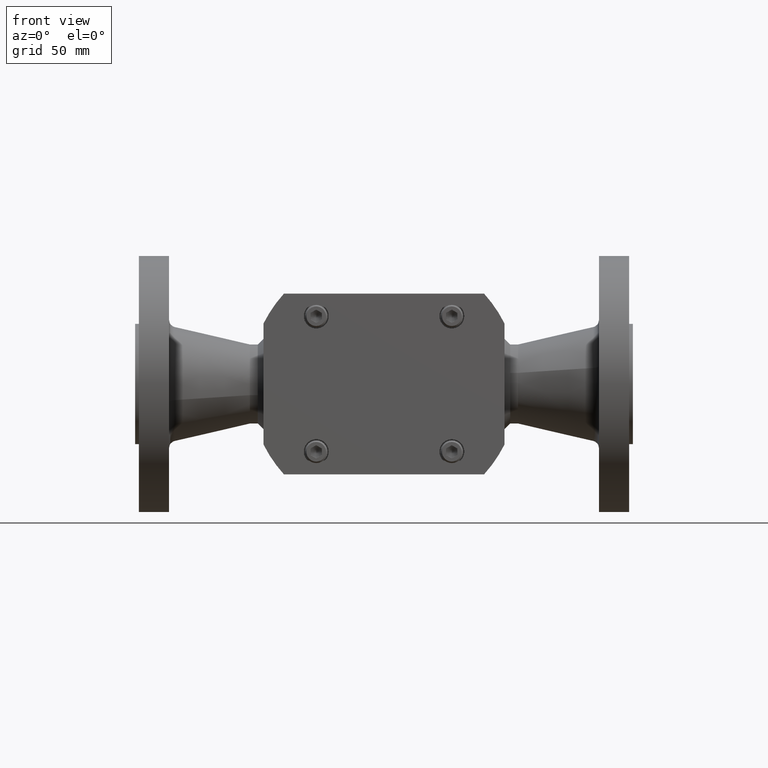
[diagram: clean part render]
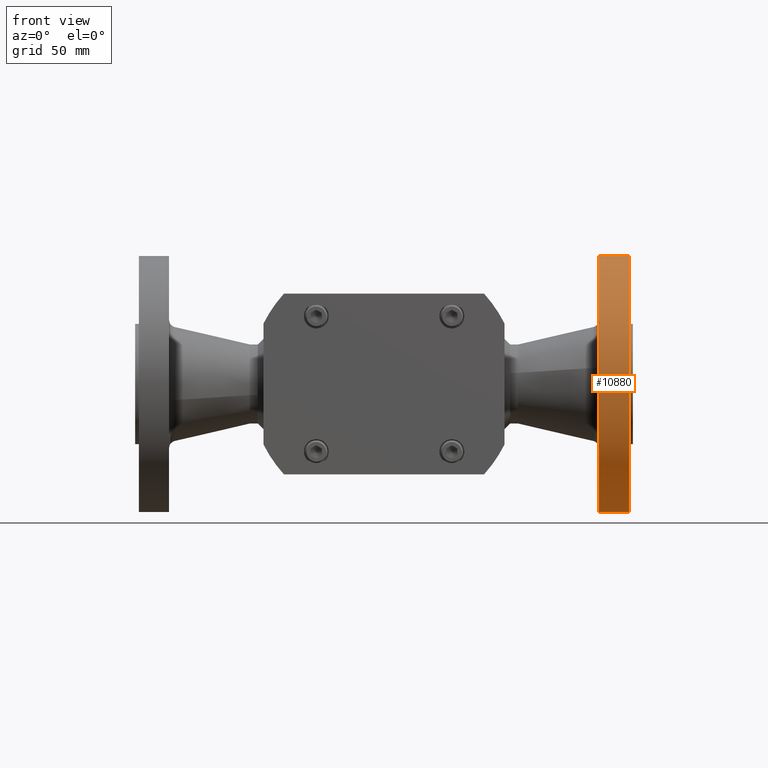
[diagram: same view with one face highlighted and labeled with its STEP entity id]
A machine part, front view. The second image highlights one B-rep face of the part: STEP entity #10880.
In plain terms, the highlighted cylindrical surface (bore or boss wall) has radius 53.975 mm, axis along (1, -0, 0).
Its self-contained STEP definition (entity closure, byte-faithful):
#10774=CARTESIAN_POINT('',(4.067500000010002,3.339042963724080,-0.598271503676055));
#10775=VERTEX_POINT('',#10774);
#10776=CARTESIAN_POINT('',(4.067500000010001,1.300000000000023,1.204106E-015));
#10777=DIRECTION('',(1.000000000000000,-2.510179E-016,-2.510179E-016));
#10778=DIRECTION('',(3.549929E-016,0.707106781186553,0.707106781186541));
#10779=AXIS2_PLACEMENT_3D('',#10776,#10777,#10778);
#10780=CIRCLE('',#10779,2.125000000010000);
#10781=EDGE_CURVE('',#10775,#10775,#10780,.T.);
#10861=CARTESIAN_POINT('',(3.038750000010000,1.300000000000023,1.078121E-015));
#10862=DIRECTION('',(1.0,-6.245005E-016,1.224647E-016));
#10863=DIRECTION('',(6.337178E-016,0.959549629984896,-0.281539531142339));
#10864=AXIS2_PLACEMENT_3D('',#10861,#10862,#10863);
#10865=CYLINDRICAL_SURFACE('',#10864,2.125000000010000);
#10866=ORIENTED_EDGE('',*,*,#10781,.F.);
#10867=EDGE_LOOP('',(#10866));
#10868=FACE_OUTER_BOUND('',#10867,.T.);
#10869=CARTESIAN_POINT('',(3.567500000008002,3.339042963724080,-0.598271503676055));
#10870=VERTEX_POINT('',#10869);
#10871=CARTESIAN_POINT('',(3.567500000008000,1.300000000000023,1.142874E-015));
#10872=DIRECTION('',(1.000000000000000,-2.510179E-016,-2.510179E-016));
#10873=DIRECTION('',(3.549929E-016,0.707106781186553,0.707106781186541));
#10874=AXIS2_PLACEMENT_3D('',#10871,#10872,#10873);
#10875=CIRCLE('',#10874,2.125000000010000);
#10876=EDGE_CURVE('',#10870,#10870,#10875,.T.);
#10877=ORIENTED_EDGE('',*,*,#10876,.T.);
#10878=EDGE_LOOP('',(#10877));
#10879=FACE_BOUND('',#10878,.T.);
#10880=ADVANCED_FACE('',(#10868,#10879),#10865,.T.);